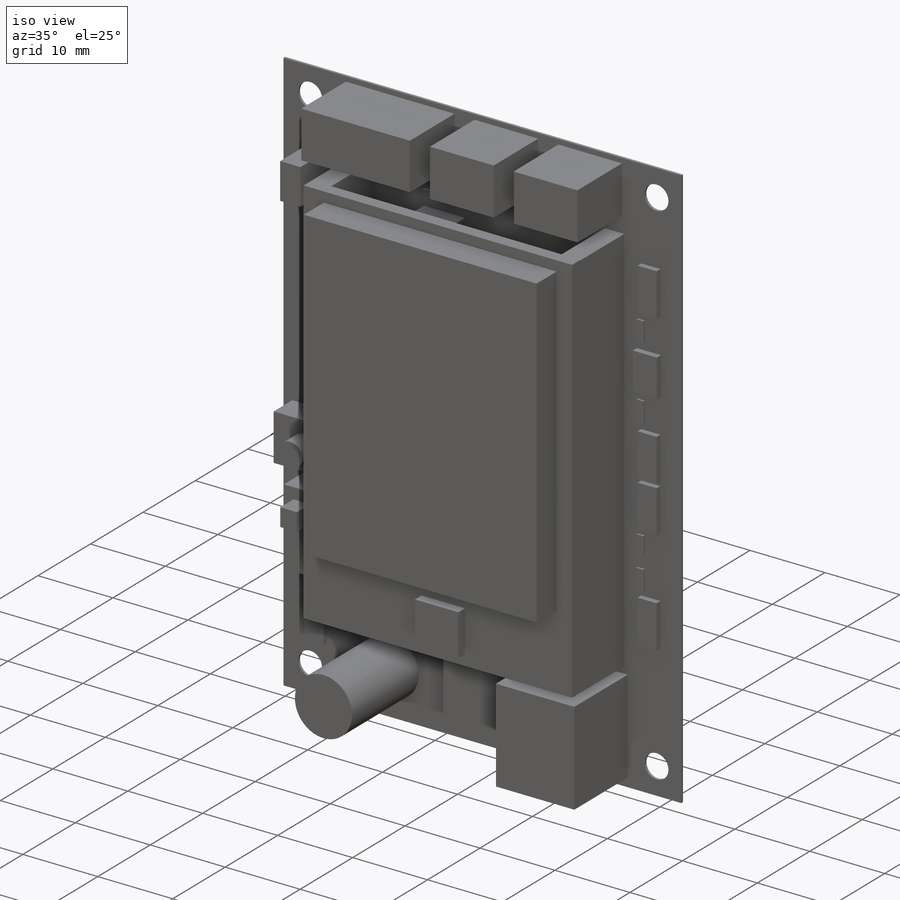
[diagram: iso view]
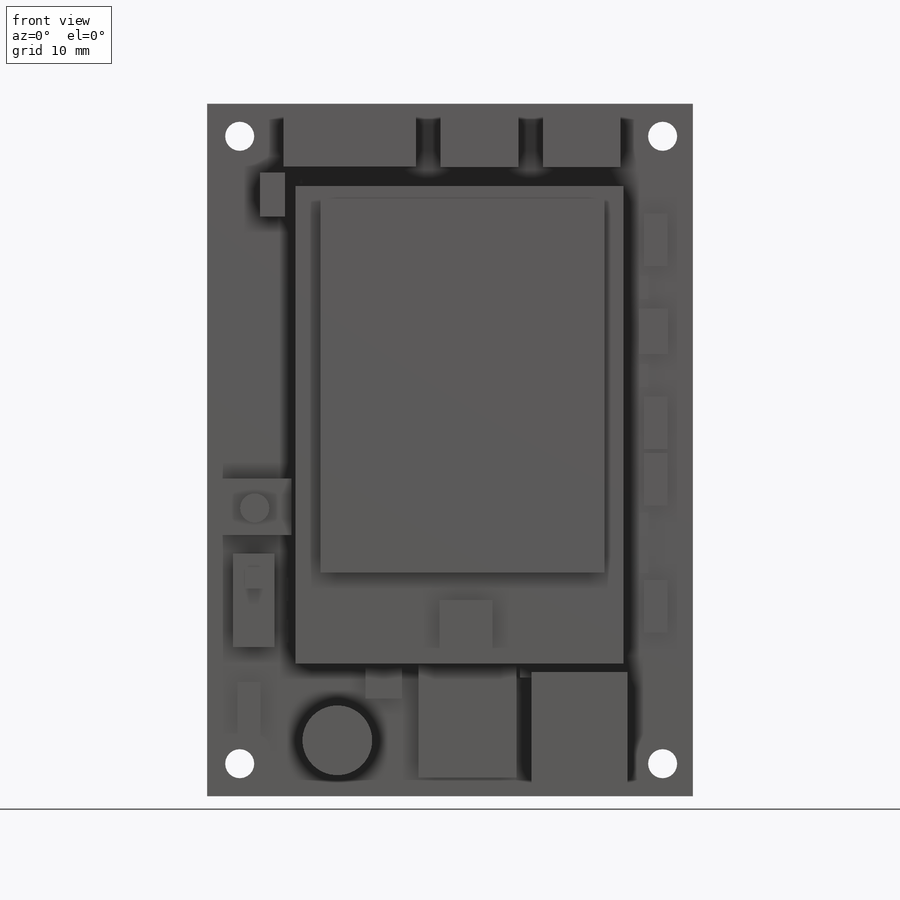
[diagram: front view]
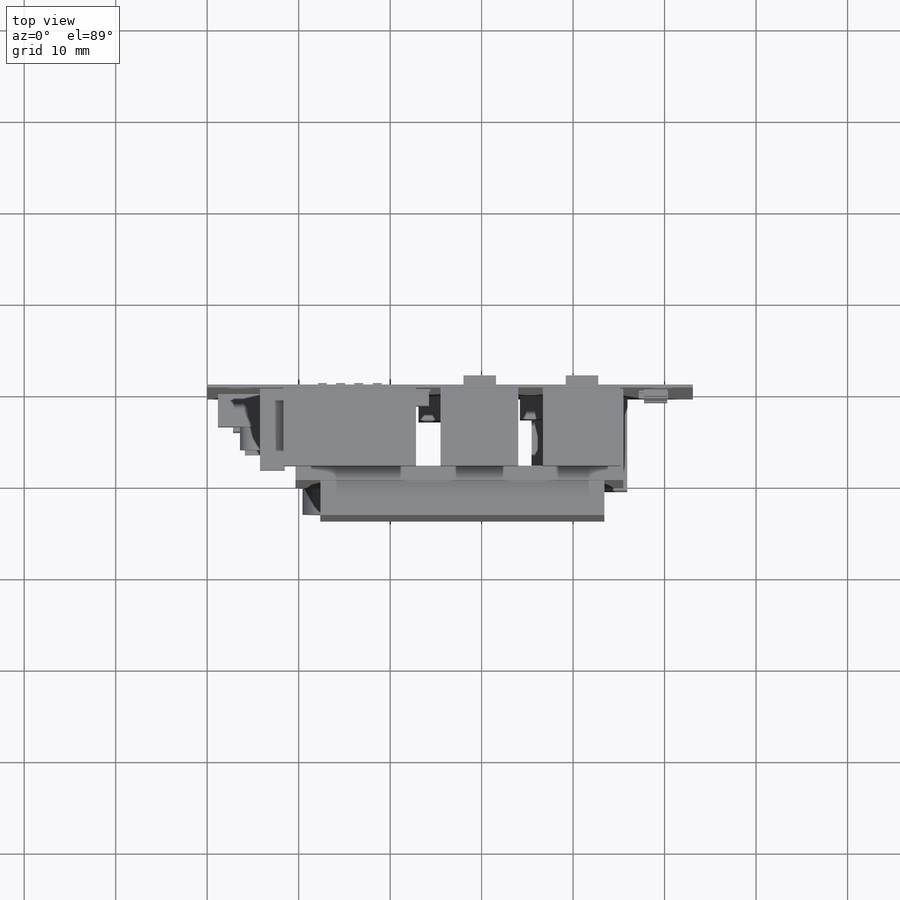
[diagram: top view]
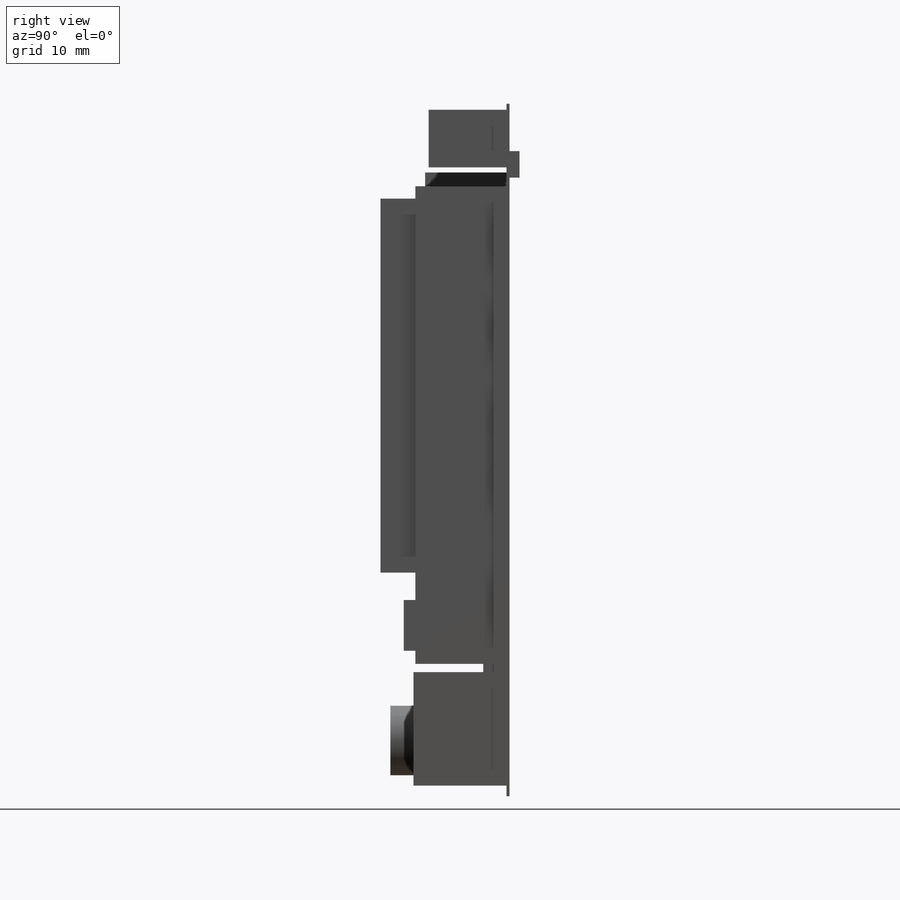
[diagram: right view]
SOLIDWORKS PART (.sldprt)
format: sldprt  version: not decoded by parser v0  size: 655,360 bytes
history: native  units: mm
features: sketch x48, extrude x46, plane x2, fillet x2, material x1, hole x1 (+16 scaffold rows collapsed)
feature tree (116):
  scaffold x16  (default folders/planes/origin — collapsed)
  material  "Material <not specified>"
  sketch  "Sketch1"
  extrude  "BOARD"  Depth=0.32258mm
  plane  "Plane1"
  sketch  "Sketch3"
  extrude  "OS_SPDT-1"  Depth=3.960243mm
  sketch  "Sketch4"
  extrude  "SMA-50-TH-1"  Depth=12.7mm
  sketch  "Sketch5"
  extrude  "U_FL-1"  Depth=1.27mm
  sketch  "Sketch6"
  extrude  "DDPAK-1"  Depth=2.54mm
  sketch  "Sketch7"
  extrude  "SOIC8-1"  Depth=1.7526mm
  sketch  "Sketch8"
  extrude  "0603-R-1"  Depth=0.254mm
  sketch  "Sketch9"
  extrude  "0805_POL-1"  Depth=0.7112mm
  sketch  "Sketch10"
  extrude  "0603-R-2"  Depth=0.254mm
  sketch  "Sketch11"
  extrude  "0603-R-3"  Depth=0.254mm
  sketch  "Sketch12"
  extrude  "0805_POL-2"  Depth=0.7112mm
  sketch  "Sketch13"
  extrude  "0603-R-4"  Depth=0.254mm
  sketch  "Sketch14"
  extrude  "SOT505-2-1"  Depth=0.787912mm
  sketch  "Sketch15"
  extrude  "1206-R-1"  Depth=0.635mm
  sketch  "Sketch16"
  extrude  "0603-R-5"  Depth=0.254mm
  sketch  "Sketch17"
  extrude  "0603-R-6"  Depth=0.254mm
  sketch  "Sketch18"
  extrude  "0603-R-7"  Depth=0.254mm
  sketch  "Sketch19"
  extrude  "0603-R-8"  Depth=0.254mm
  sketch  "Sketch20"
  extrude  "1206-R-2"  Depth=0.635mm
  sketch  "Sketch21"
  extrude  "0805_POL-3"  Depth=0.7112mm
  sketch  "Sketch22"
  extrude  "0805_POL-4"  Depth=0.7112mm
  sketch  "Sketch23"
  extrude  "0603-R-9"  Depth=0.254mm
  sketch  "Sketch24"
  extrude  "0805_POL-5"  Depth=0.7112mm
  sketch  "Sketch25"
  extrude  "HDR_SHERLOCK_6P_V-1"  Depth=8.509mm
  sketch  "Sketch26"
  extrude  "HDR_SHERLOCK_3P_V-1"  Depth=8.509mm
  sketch  "Sketch27"
  extrude  "HDR_SHERLOCK_3P_V-2"  Depth=8.509mm
  sketch  "Sketch28"
  extrude  "SOT-23-1"  Depth=1.0922mm
  sketch  "Sketch29"
  extrude  "SOT-23-2"  Depth=1.0922mm
  sketch  "Sketch30"
  extrude  "SPST_6MM-1"  Depth=3.556mm
  sketch  "Sketch31"
  extrude  "0603-R-10"  Depth=0.254mm
  sketch  "Sketch32"
  extrude  "0603-R-11"  Depth=0.254mm
  sketch  "Sketch33"
  extrude  "1206-R-3"  Depth=0.635mm
  sketch  "Sketch34"
  extrude  "0603-R-12"  Depth=0.254mm
  sketch  "Sketch35"
  extrude  "0603-R-13"  Depth=0.254mm
  sketch  "Sketch36"
  extrude  "0603-R-14"  Depth=0.254mm
  sketch  "Sketch37"
  extrude  "0603-R-15"  Depth=0.254mm
  sketch  "Sketch38"
  extrude  "HDR_2P1R_100MIL-1"  Depth=8.89mm
  sketch  "Sketch39"
  extrude  "HDR_MFITJR_2R2P-V-1"  Depth=10.16mm
  sketch  "Sketch40"
  extrude  "SMC-R-1"  Depth=2.5146mm
  hole  "1/8 (0.125) Diameter Hole1"  Diameter=3.175mm Depth=25.4mm
  sketch  "3DSketch1"
  sketch  "Sketch45"  dims[hole-wizard template sketch: 47 standard entries collapsed; hole parameters kept: c15.Hole Depth=25.4mm c15.D3=~14.816244mm c15.Drill Angle=118.0deg]
  fillet  "Fillet2"  Radius=3.81mm
  fillet  "Fillet3"  Radius=3.81mm
  plane  "Plane2"
  sketch  "Sketch51"
  extrude  "Extrude42"  Depth=8.382mm
  sketch  "Sketch53"
  extrude  "Extrude43"  Depth=8.382mm
  sketch  "Sketch54"
  extrude  "Extrude44"  Depth=2.54mm
  sketch  "Sketch55"
  extrude  "Extrude45"  Depth=2.54mm
  sketch  "Sketch56"
  extrude  "Extrude47"  Depth=1.5748mm
  sketch  "Sketch58"
  extrude  "Extrude48"  Depth=3.81mm
  sketch  "Sketch59"
  extrude  "Extrude49"  Depth=1.27mm
decode coverage: 50 of 97 modeling features carry decoded parameters
note: ~ marks probable driven/reference dimensions
note: suppression state not decoded; provenance and decode notes live in map.json
